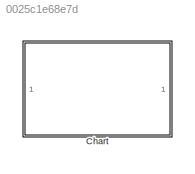
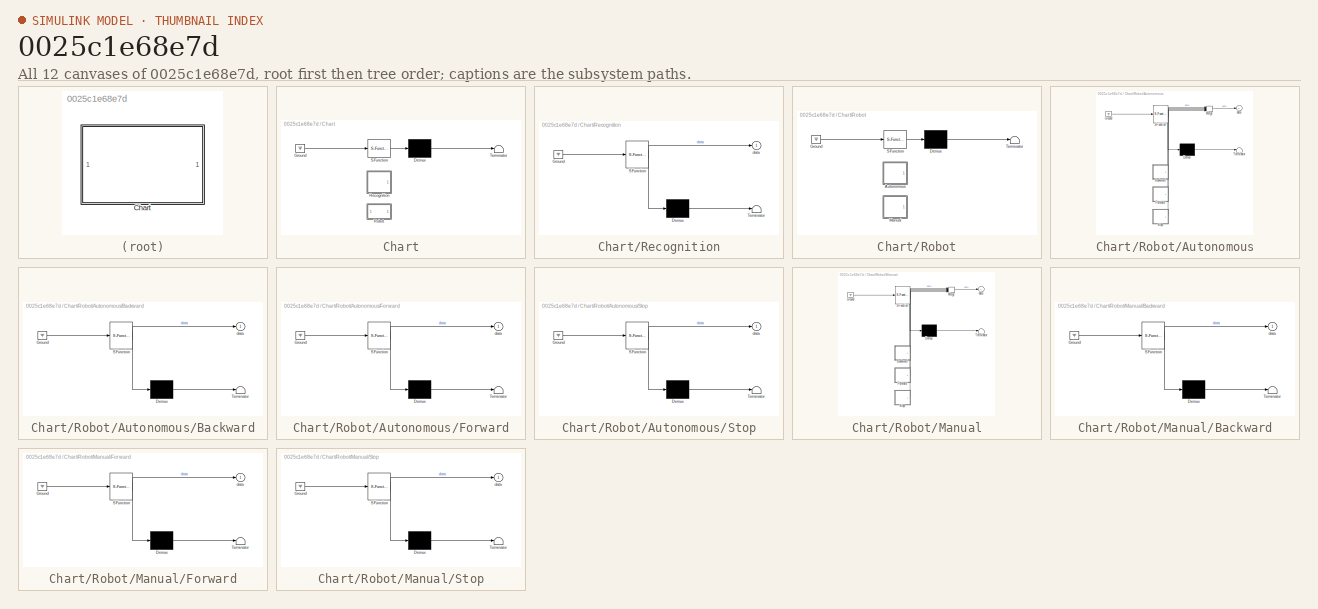
[diagram: thumbnail index - all 12 canvases of the model, root first then tree order]
MODEL slx_0025c1e68e7d
KIND model
CONFIG AbsTol = auto
CONFIG FixedStep = 0.1
CONFIG MaxStep = auto
CONFIG MinStep = auto
CONFIG RelTol = 1e-3
CONFIG SampleTimeConstraint = Unconstrained
CONFIG Solver = FixedStepDiscrete
CONFIG SolverMode = Auto
CONFIG SolverName = FixedStepDiscrete
CONFIG StartTime = 0.0
CONFIG StopTime = 10.0
BLOCK [SubSystem] Chart
  ErrorFcn = Stateflow.Translate.translate
  PermitHierarchicalResolution = ExplicitOnly
  Ports = []
  RequestExecContextInheritance = off
  SFBlockType = Chart
  TreatAsAtomicUnit = on
  Variant = off
BLOCK [Demux] Chart/ Demux 
  Outputs = 1
  Ports = [1, 1]
BLOCK [Ground] Chart/ Ground 
BLOCK [S-Function] Chart/ SFunction 
  EnableBusSupport = off
  FunctionName = sf_sfun
  PortCounts = [1 1]
  Ports = [1, 1]
  SFunctionDeploymentMode = off
  Tag = Stateflow S-Function fsm_for_robot_project 3
BLOCK [Terminator] Chart/ Terminator 
BLOCK [SubSystem] Chart/Recognition
  CopyFcn = set_param(gcbh, 'DSMNames', '', 'DSMValues', '', 'CopyFcn', '')
  ErrorFcn = Stateflow.Translate.translate
  PermitHierarchicalResolution = ExplicitOnly
  Ports = [0, 1]
  RequestExecContextInheritance = off
  SFBlockType = Chart
  TreatAsAtomicUnit = on
  Variant = off
BLOCK [Demux] Chart/Recognition/ Demux 
  Outputs = 1
  Ports = [1, 1]
BLOCK [Ground] Chart/Recognition/ Ground 
BLOCK [S-Function] Chart/Recognition/ SFunction 
  EnableBusSupport = on
  FunctionName = sf_sfun
  PortCounts = [1 2]
  Ports = [1, 2]
  SFunctionDeploymentMode = off
  Tag = Stateflow S-Function fsm_for_robot_project 2
BLOCK [Terminator] Chart/Recognition/ Terminator 
BLOCK [Outport] Chart/Recognition/data
  IconDisplay = Port number
BLOCK [SubSystem] Chart/Robot
  CopyFcn = set_param(gcbh, 'DSMNames', '', 'DSMValues', '', 'CopyFcn', '')
  ErrorFcn = Stateflow.Translate.translate
  PermitHierarchicalResolution = ExplicitOnly
  Ports = []
  RequestExecContextInheritance = off
  SFBlockType = Chart
  TreatAsAtomicUnit = on
  Variant = off
BLOCK [Demux] Chart/Robot/ Demux 
  Outputs = 1
  Ports = [1, 1]
BLOCK [Ground] Chart/Robot/ Ground 
BLOCK [S-Function] Chart/Robot/ SFunction 
  EnableBusSupport = off
  FunctionName = sf_sfun
  PortCounts = [1 1]
  Ports = [1, 1]
  SFunctionDeploymentMode = off
  Tag = Stateflow S-Function fsm_for_robot_project 1
BLOCK [Terminator] Chart/Robot/ Terminator 
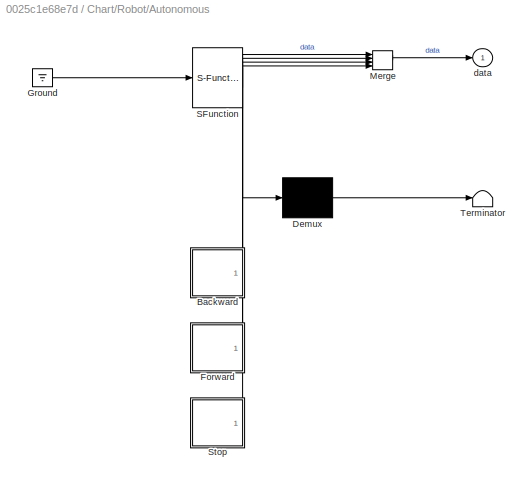
BLOCK [SubSystem] Chart/Robot/Autonomous
  CopyFcn = set_param(gcbh, 'DSMNames', '', 'DSMValues', '', 'CopyFcn', '')
  ErrorFcn = Stateflow.Translate.translate
  PermitHierarchicalResolution = ExplicitOnly
  Ports = [0, 1]
  RequestExecContextInheritance = off
  SFBlockType = Chart
  TreatAsAtomicUnit = on
  Variant = off
BLOCK [Demux] Chart/Robot/Autonomous/ Demux 
  Outputs = 1
  Ports = [1, 1]
BLOCK [Ground] Chart/Robot/Autonomous/ Ground 
BLOCK [Merge] Chart/Robot/Autonomous/ Merge 
  Inputs = 4
  Ports = [4, 1]
BLOCK [S-Function] Chart/Robot/Autonomous/ SFunction 
  EnableBusSupport = on
  FunctionName = sf_sfun
  PortCounts = [1 2]
  Ports = [1, 2]
  SFunctionDeploymentMode = off
  Tag = Stateflow S-Function fsm_for_robot_project 11
BLOCK [Terminator] Chart/Robot/Autonomous/ Terminator 
BLOCK [SubSystem] Chart/Robot/Autonomous/Backward
  ErrorFcn = Stateflow.Translate.translate
  PermitHierarchicalResolution = ExplicitOnly
  Ports = [0, 1]
  RequestExecContextInheritance = off
  SFBlockType = Chart
  TreatAsAtomicUnit = on
  Variant = off
BLOCK [Demux] Chart/Robot/Autonomous/Backward/ Demux 
  Outputs = 1
  Ports = [1, 1]
BLOCK [Ground] Chart/Robot/Autonomous/Backward/ Ground 
BLOCK [S-Function] Chart/Robot/Autonomous/Backward/ SFunction 
  EnableBusSupport = on
  FunctionName = sf_sfun
  PortCounts = [1 2]
  Ports = [1, 2]
  SFunctionDeploymentMode = off
  Tag = Stateflow S-Function fsm_for_robot_project 12
BLOCK [Terminator] Chart/Robot/Autonomous/Backward/ Terminator 
BLOCK [Outport] Chart/Robot/Autonomous/Backward/data
  IconDisplay = Port number
BLOCK [SubSystem] Chart/Robot/Autonomous/Forward
  ErrorFcn = Stateflow.Translate.translate
  PermitHierarchicalResolution = ExplicitOnly
  Ports = [0, 1]
  RequestExecContextInheritance = off
  SFBlockType = Chart
  TreatAsAtomicUnit = on
  Variant = off
BLOCK [Demux] Chart/Robot/Autonomous/Forward/ Demux 
  Outputs = 1
  Ports = [1, 1]
BLOCK [Ground] Chart/Robot/Autonomous/Forward/ Ground 
BLOCK [S-Function] Chart/Robot/Autonomous/Forward/ SFunction 
  EnableBusSupport = on
  FunctionName = sf_sfun
  PortCounts = [1 2]
  Ports = [1, 2]
  SFunctionDeploymentMode = off
  Tag = Stateflow S-Function fsm_for_robot_project 13
BLOCK [Terminator] Chart/Robot/Autonomous/Forward/ Terminator 
BLOCK [Outport] Chart/Robot/Autonomous/Forward/data
  IconDisplay = Port number
BLOCK [SubSystem] Chart/Robot/Autonomous/Stop
  ErrorFcn = Stateflow.Translate.translate
  PermitHierarchicalResolution = ExplicitOnly
  Ports = [0, 1]
  RequestExecContextInheritance = off
  SFBlockType = Chart
  TreatAsAtomicUnit = on
  Variant = off
BLOCK [Demux] Chart/Robot/Autonomous/Stop/ Demux 
  Outputs = 1
  Ports = [1, 1]
BLOCK [Ground] Chart/Robot/Autonomous/Stop/ Ground 
BLOCK [S-Function] Chart/Robot/Autonomous/Stop/ SFunction 
  EnableBusSupport = on
  FunctionName = sf_sfun
  PortCounts = [1 2]
  Ports = [1, 2]
  SFunctionDeploymentMode = off
  Tag = Stateflow S-Function fsm_for_robot_project 14
BLOCK [Terminator] Chart/Robot/Autonomous/Stop/ Terminator 
BLOCK [Outport] Chart/Robot/Autonomous/Stop/data
  IconDisplay = Port number
BLOCK [Outport] Chart/Robot/Autonomous/data
  IconDisplay = Port number
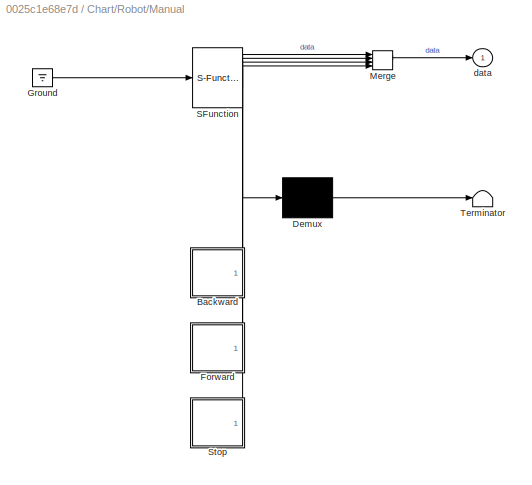
BLOCK [SubSystem] Chart/Robot/Manual
  CopyFcn = set_param(gcbh, 'DSMNames', '', 'DSMValues', '', 'CopyFcn', '')
  ErrorFcn = Stateflow.Translate.translate
  PermitHierarchicalResolution = ExplicitOnly
  Ports = [0, 1]
  RequestExecContextInheritance = off
  SFBlockType = Chart
  TreatAsAtomicUnit = on
  Variant = off
BLOCK [Demux] Chart/Robot/Manual/ Demux 
  Outputs = 1
  Ports = [1, 1]
BLOCK [Ground] Chart/Robot/Manual/ Ground 
BLOCK [Merge] Chart/Robot/Manual/ Merge 
  Inputs = 4
  Ports = [4, 1]
BLOCK [S-Function] Chart/Robot/Manual/ SFunction 
  EnableBusSupport = on
  FunctionName = sf_sfun
  PortCounts = [1 2]
  Ports = [1, 2]
  SFunctionDeploymentMode = off
  Tag = Stateflow S-Function fsm_for_robot_project 7
BLOCK [Terminator] Chart/Robot/Manual/ Terminator 
BLOCK [SubSystem] Chart/Robot/Manual/Backward
  CopyFcn = set_param(gcbh, 'DSMNames', '', 'DSMValues', '', 'CopyFcn', '')
  ErrorFcn = Stateflow.Translate.translate
  PermitHierarchicalResolution = ExplicitOnly
  Ports = [0, 1]
  RequestExecContextInheritance = off
  SFBlockType = Chart
  TreatAsAtomicUnit = on
  Variant = off
BLOCK [Demux] Chart/Robot/Manual/Backward/ Demux 
  Outputs = 1
  Ports = [1, 1]
BLOCK [Ground] Chart/Robot/Manual/Backward/ Ground 
BLOCK [S-Function] Chart/Robot/Manual/Backward/ SFunction 
  EnableBusSupport = on
  FunctionName = sf_sfun
  PortCounts = [1 2]
  Ports = [1, 2]
  SFunctionDeploymentMode = off
  Tag = Stateflow S-Function fsm_for_robot_project 8
BLOCK [Terminator] Chart/Robot/Manual/Backward/ Terminator 
BLOCK [Outport] Chart/Robot/Manual/Backward/data
  IconDisplay = Port number
BLOCK [SubSystem] Chart/Robot/Manual/Forward
  CopyFcn = set_param(gcbh, 'DSMNames', '', 'DSMValues', '', 'CopyFcn', '')
  ErrorFcn = Stateflow.Translate.translate
  PermitHierarchicalResolution = ExplicitOnly
  Ports = [0, 1]
  RequestExecContextInheritance = off
  SFBlockType = Chart
  TreatAsAtomicUnit = on
  Variant = off
BLOCK [Demux] Chart/Robot/Manual/Forward/ Demux 
  Outputs = 1
  Ports = [1, 1]
BLOCK [Ground] Chart/Robot/Manual/Forward/ Ground 
BLOCK [S-Function] Chart/Robot/Manual/Forward/ SFunction 
  EnableBusSupport = on
  FunctionName = sf_sfun
  PortCounts = [1 2]
  Ports = [1, 2]
  SFunctionDeploymentMode = off
  Tag = Stateflow S-Function fsm_for_robot_project 10
BLOCK [Terminator] Chart/Robot/Manual/Forward/ Terminator 
BLOCK [Outport] Chart/Robot/Manual/Forward/data
  IconDisplay = Port number
BLOCK [SubSystem] Chart/Robot/Manual/Stop
  CopyFcn = set_param(gcbh, 'DSMNames', '', 'DSMValues', '', 'CopyFcn', '')
  ErrorFcn = Stateflow.Translate.translate
  PermitHierarchicalResolution = ExplicitOnly
  Ports = [0, 1]
  RequestExecContextInheritance = off
  SFBlockType = Chart
  TreatAsAtomicUnit = on
  Variant = off
BLOCK [Demux] Chart/Robot/Manual/Stop/ Demux 
  Outputs = 1
  Ports = [1, 1]
BLOCK [Ground] Chart/Robot/Manual/Stop/ Ground 
BLOCK [S-Function] Chart/Robot/Manual/Stop/ SFunction 
  EnableBusSupport = on
  FunctionName = sf_sfun
  PortCounts = [1 2]
  Ports = [1, 2]
  SFunctionDeploymentMode = off
  Tag = Stateflow S-Function fsm_for_robot_project 9
BLOCK [Terminator] Chart/Robot/Manual/Stop/ Terminator 
BLOCK [Outport] Chart/Robot/Manual/Stop/data
  IconDisplay = Port number
BLOCK [Outport] Chart/Robot/Manual/data
  IconDisplay = Port number
CHART Chart/Robot states=2 transitions=3
  STATE_LABEL 'Manual'
  STATE_LABEL 'Autonomous'
CHART Chart/Recognition states=3 transitions=6
  STATE_LABEL 'Sample Kinect Sensors'
  STATE_LABEL 'Process Frame (Sensor Data)'
  STATE_LABEL 'Analyze Motion'
CHART Chart states=2 transitions=1
  STATE_LABEL 'Recognition Software'
  STATE_LABEL 'Robot Controller'
CHART Chart/Robot/Manual states=3 transitions=7
  STATE_LABEL 'Stop'
  STATE_LABEL 'Backward'
  STATE_LABEL 'Forward'
CHART Chart/Robot/Manual/Backward states=3 transitions=7
  STATE_LABEL 'Backward'
  STATE_LABEL 'TurnL'
  STATE_LABEL 'TurnR'
CHART Chart/Robot/Manual/Stop states=3 transitions=7
  STATE_LABEL 'Stop'
  STATE_LABEL 'TurnL'
  STATE_LABEL 'TurnR'
CHART Chart/Robot/Manual/Forward states=3 transitions=7
  STATE_LABEL 'Forward'
  STATE_LABEL 'TurnL'
  STATE_LABEL 'TurnR'
CHART Chart/Robot/Autonomous states=3 transitions=7
  STATE_LABEL 'Stop'
  STATE_LABEL 'Backward'
  STATE_LABEL 'Forward'
CHART Chart/Robot/Autonomous/Backward states=3 transitions=7
  STATE_LABEL 'Backward'
  STATE_LABEL 'TurnL'
  STATE_LABEL 'TurnR'
CHART Chart/Robot/Autonomous/Forward states=3 transitions=7
  STATE_LABEL 'Forward'
  STATE_LABEL 'TurnL'
  STATE_LABEL 'TurnR'
CHART Chart/Robot/Autonomous/Stop states=3 transitions=7
  STATE_LABEL 'Stop'
  STATE_LABEL 'TurnL'
  STATE_LABEL 'TurnR'
